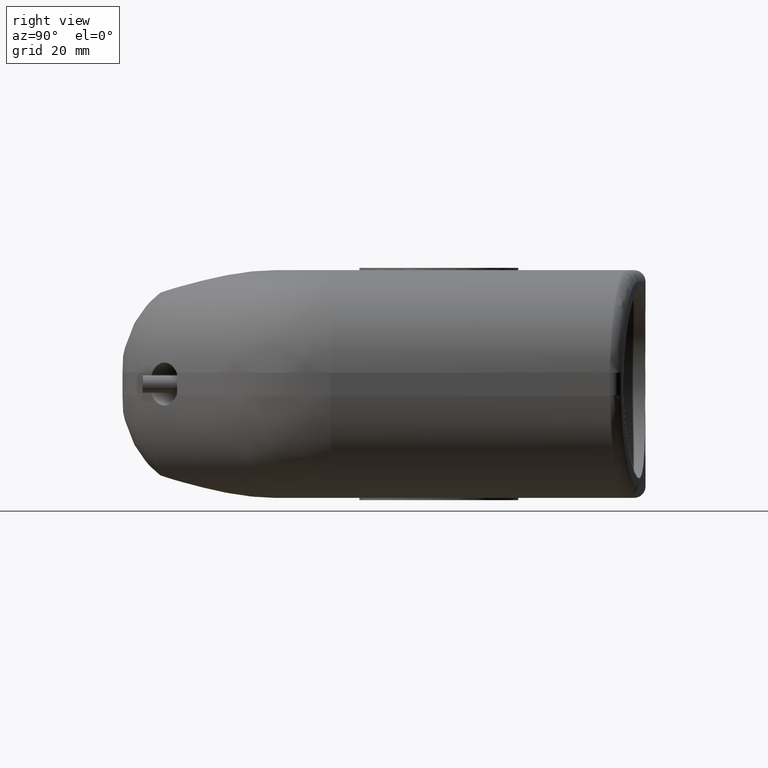
[diagram: clean part render]
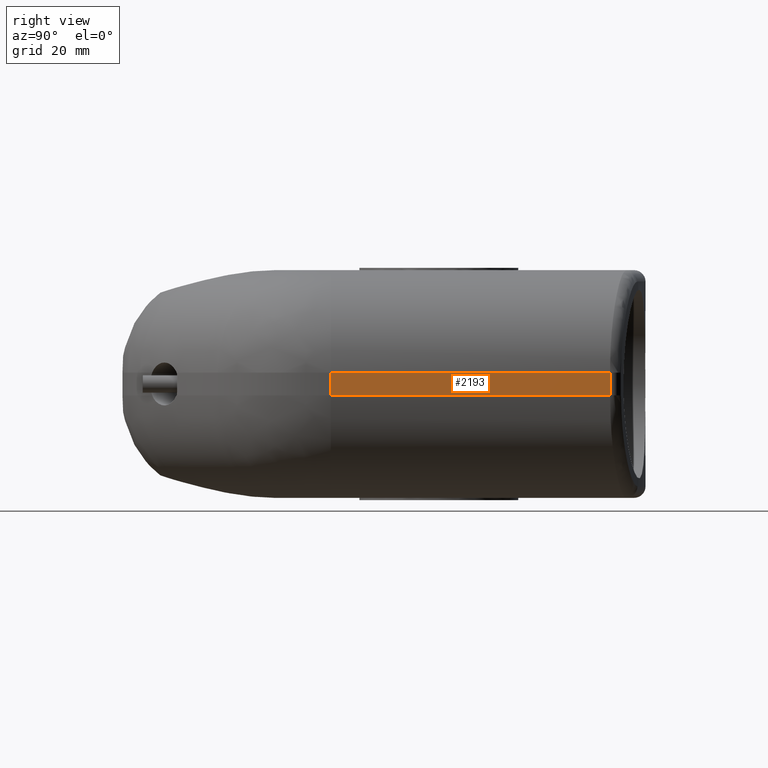
[diagram: same view with one face highlighted and labeled with its STEP entity id]
A machine part, right view. The second image highlights one B-rep face of the part: STEP entity #2193.
In plain terms, the highlighted planar face has unit normal (1, 0, 0).
Its self-contained STEP definition (entity closure, byte-faithful):
#158=LINE('',#4161,#296);
#165=LINE('',#4339,#303);
#166=LINE('',#4391,#304);
#167=LINE('',#4393,#305);
#296=VECTOR('',#3028,5.29999999999999);
#303=VECTOR('',#3063,64.9749323297176);
#304=VECTOR('',#3090,64.9749323297176);
#305=VECTOR('',#3093,5.3);
#415=PLANE('',#2450);
#572=FACE_OUTER_BOUND('',#734,.T.);
#734=EDGE_LOOP('',(#1988,#1989,#1990,#1991));
#1064=VERTEX_POINT('',#4139);
#1067=VERTEX_POINT('',#4159);
#1077=VERTEX_POINT('',#4338);
#1079=VERTEX_POINT('',#4387);
#1357=EDGE_CURVE('',#1067,#1064,#158,.T.);
#1378=EDGE_CURVE('',#1064,#1077,#165,.T.);
#1388=EDGE_CURVE('',#1079,#1067,#166,.T.);
#1389=EDGE_CURVE('',#1077,#1079,#167,.T.);
#1988=ORIENTED_EDGE('',*,*,#1357,.F.);
#1989=ORIENTED_EDGE('',*,*,#1388,.F.);
#1990=ORIENTED_EDGE('',*,*,#1389,.F.);
#1991=ORIENTED_EDGE('',*,*,#1378,.F.);
#2193=ADVANCED_FACE('',(#572),#415,.T.);
#2450=AXIS2_PLACEMENT_3D('',#4392,#3091,#3092);
#3028=DIRECTION('',(0.,0.,-1.));
#3063=DIRECTION('',(1.10137506666321E-16,-1.,0.));
#3090=DIRECTION('',(-1.10137506666321E-16,1.,0.));
#3091=DIRECTION('center_axis',(1.,1.10137506666321E-16,0.));
#3092=DIRECTION('ref_axis',(0.,1.,0.));
#3093=DIRECTION('',(0.,0.,1.));
#4139=CARTESIAN_POINT('',(53.,90.1411873259655,-2.64999999999999));
#4159=CARTESIAN_POINT('',(53.,90.1411873259654,2.65));
#4161=CARTESIAN_POINT('',(53.,90.1411873259654,0.));
#4338=CARTESIAN_POINT('',(53.,25.1662549962479,-2.65));
#4339=CARTESIAN_POINT('',(53.,27.7170051737186,-2.65));
#4387=CARTESIAN_POINT('',(53.,25.1662549962479,2.65));
#4391=CARTESIAN_POINT('',(53.,27.7170051737186,2.65));
#4392=CARTESIAN_POINT('Origin',(53.,11.6073155427425,0.));
#4393=CARTESIAN_POINT('',(53.,25.1662549962479,0.));